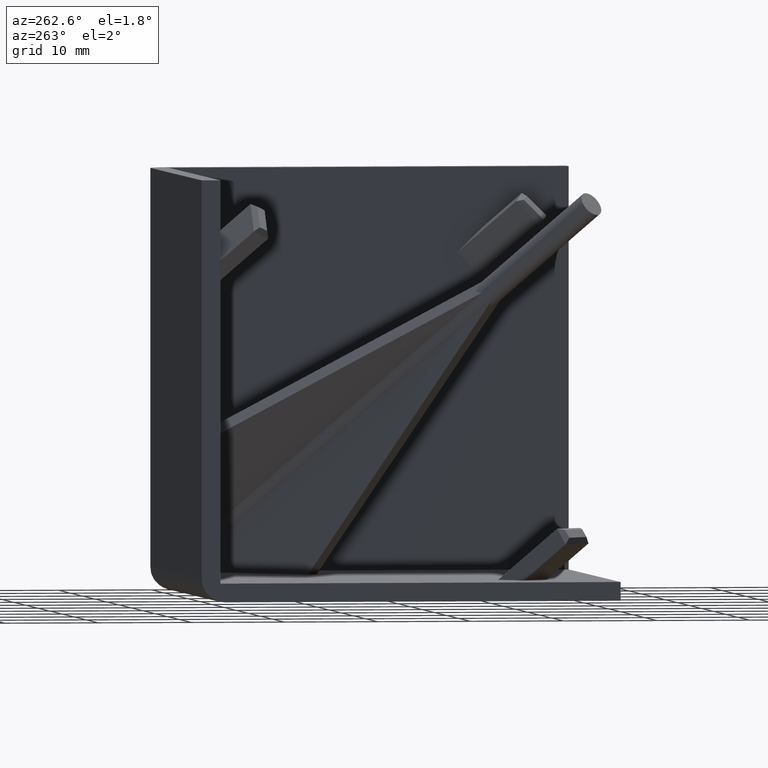
[diagram: clean part render]
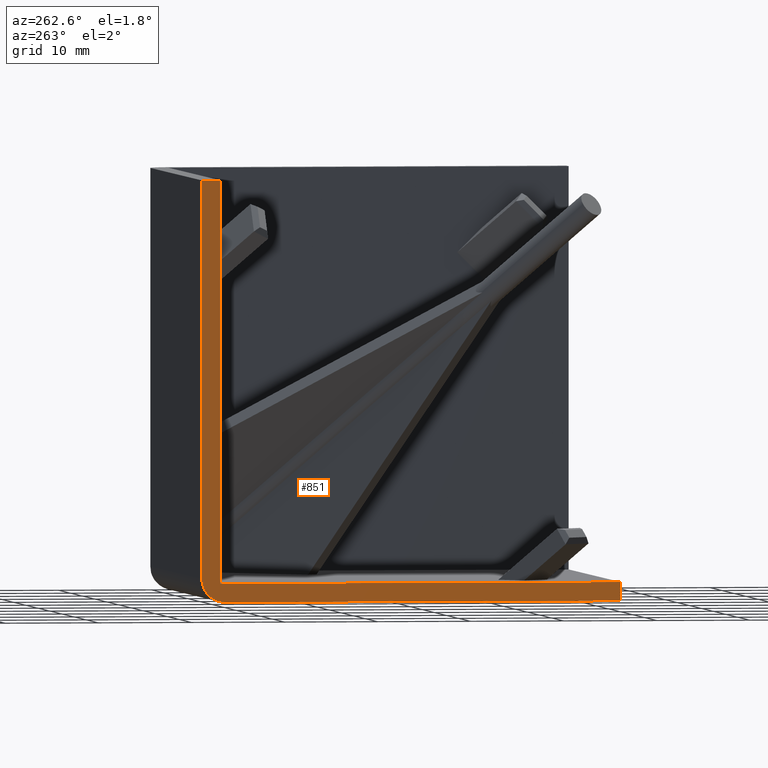
[diagram: same view with one face highlighted and labeled with its STEP entity id]
A machine part, auxiliary view. The second image highlights one B-rep face of the part: STEP entity #851.
In plain terms, the highlighted planar face has unit normal (-1, 0, 0).
Its self-contained STEP definition (entity closure, byte-faithful):
#20=PLANE('',#936);
#67=FACE_OUTER_BOUND('',#119,.T.);
#119=EDGE_LOOP('',(#631,#632,#633,#634,#635,#636,#637));
#171=CIRCLE('',#937,2.5);
#187=LINE('',#1280,#293);
#195=LINE('',#1296,#301);
#196=LINE('',#1300,#302);
#197=LINE('',#1301,#303);
#198=LINE('',#1303,#304);
#199=LINE('',#1304,#305);
#293=VECTOR('',#1029,1000.);
#301=VECTOR('',#1039,1000.);
#302=VECTOR('',#1042,1000.);
#303=VECTOR('',#1043,1000.);
#304=VECTOR('',#1044,1000.);
#305=VECTOR('',#1045,1000.);
#418=VERTEX_POINT('',#1277);
#419=VERTEX_POINT('',#1279);
#425=VERTEX_POINT('',#1294);
#426=VERTEX_POINT('',#1295);
#427=VERTEX_POINT('',#1297);
#428=VERTEX_POINT('',#1299);
#429=VERTEX_POINT('',#1302);
#497=EDGE_CURVE('',#419,#418,#187,.T.);
#505=EDGE_CURVE('',#425,#426,#195,.T.);
#506=EDGE_CURVE('',#425,#427,#171,.T.);
#507=EDGE_CURVE('',#427,#428,#196,.T.);
#508=EDGE_CURVE('',#419,#428,#197,.T.);
#509=EDGE_CURVE('',#418,#429,#198,.T.);
#510=EDGE_CURVE('',#426,#429,#199,.T.);
#631=ORIENTED_EDGE('',*,*,#505,.F.);
#632=ORIENTED_EDGE('',*,*,#506,.T.);
#633=ORIENTED_EDGE('',*,*,#507,.T.);
#634=ORIENTED_EDGE('',*,*,#508,.F.);
#635=ORIENTED_EDGE('',*,*,#497,.T.);
#636=ORIENTED_EDGE('',*,*,#509,.T.);
#637=ORIENTED_EDGE('',*,*,#510,.F.);
#851=ADVANCED_FACE('',(#67),#20,.T.);
#936=AXIS2_PLACEMENT_3D('',#1293,#1037,#1038);
#937=AXIS2_PLACEMENT_3D('',#1298,#1040,#1041);
#1029=DIRECTION('',(0.,1.,0.));
#1037=DIRECTION('center_axis',(-1.,0.,0.));
#1038=DIRECTION('ref_axis',(0.,0.,1.));
#1039=DIRECTION('',(0.,0.,1.));
#1040=DIRECTION('center_axis',(-1.,0.,0.));
#1041=DIRECTION('ref_axis',(0.,0.,1.));
#1042=DIRECTION('',(0.,-1.,0.));
#1043=DIRECTION('',(0.,0.,-1.));
#1044=DIRECTION('',(0.,0.,1.));
#1045=DIRECTION('',(0.,-1.,0.));
#1277=CARTESIAN_POINT('',(0.,43.,-43.));
#1279=CARTESIAN_POINT('',(0.,0.,-43.));
#1280=CARTESIAN_POINT('',(0.,45.,-43.));
#1293=CARTESIAN_POINT('Origin',(0.,43.,-45.));
#1294=CARTESIAN_POINT('',(0.,45.,-42.5));
#1295=CARTESIAN_POINT('',(0.,45.,0.));
#1296=CARTESIAN_POINT('',(0.,45.,-45.));
#1297=CARTESIAN_POINT('',(0.,42.5,-45.));
#1298=CARTESIAN_POINT('Origin',(0.,42.5,-42.5));
#1299=CARTESIAN_POINT('',(0.,0.,-45.));
#1300=CARTESIAN_POINT('',(0.,43.,-45.));
#1301=CARTESIAN_POINT('',(0.,0.,-43.));
#1302=CARTESIAN_POINT('',(0.,43.,0.));
#1303=CARTESIAN_POINT('',(0.,43.,-45.));
#1304=CARTESIAN_POINT('',(0.,43.,0.));